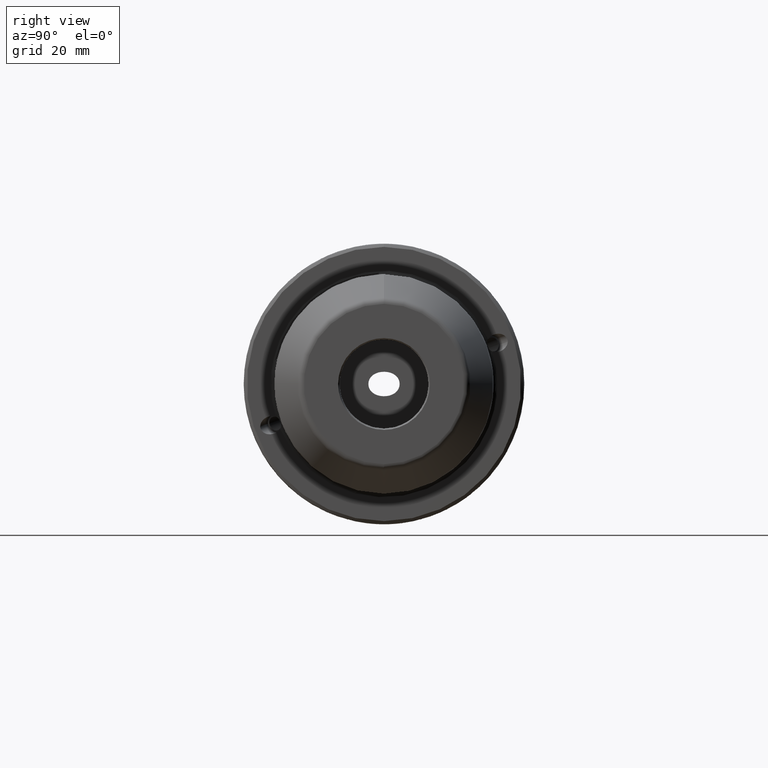
[diagram: clean part render]
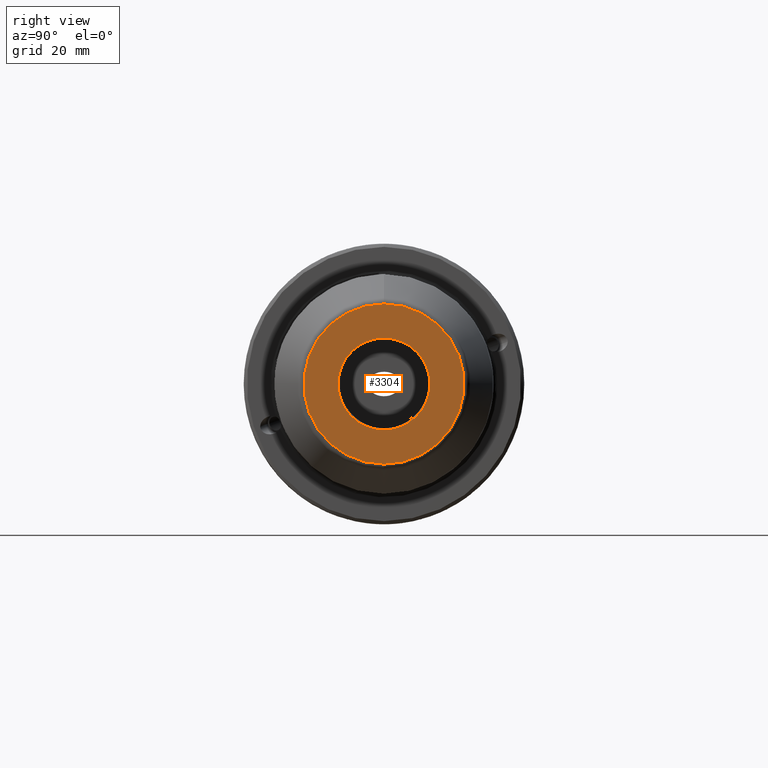
[diagram: same view with one face highlighted and labeled with its STEP entity id]
A machine part, right view. The second image highlights one B-rep face of the part: STEP entity #3304.
In plain terms, the highlighted planar face has unit normal (1, 0, 0).
Its self-contained STEP definition (entity closure, byte-faithful):
#15 = AXIS2_PLACEMENT_3D ( 'NONE', #6554, #6027, #1376 ) ;
#105 = EDGE_LOOP ( 'NONE', ( #3415, #1799 ) ) ;
#132 = EDGE_CURVE ( 'NONE', #7365, #2271, #4471, .T. ) ;
#158 = CARTESIAN_POINT ( 'NONE',  ( 137.9000000000000100, -10.13515409923963300, 1.835485800909402800 ) ) ;
#180 = CARTESIAN_POINT ( 'NONE',  ( 137.9000000000052900, 10.29999999999081000, -1.009108962495918400E-015 ) ) ;
#185 = CARTESIAN_POINT ( 'NONE',  ( 137.8999999999999500, 5.930350047342285400, -8.421965734119915200 ) ) ;
#192 = CARTESIAN_POINT ( 'NONE',  ( 137.9000000000000100, 5.561900361419710700, 8.669663316566142100 ) ) ;
#207 = CARTESIAN_POINT ( 'NONE',  ( 137.9000000000000300, -4.588065215694631300, -9.233276058712519300 ) ) ;
#223 = CARTESIAN_POINT ( 'NONE',  ( 137.9000000000000100, 10.07142262425536200, 2.160776942038703300 ) ) ;
#243 = CARTESIAN_POINT ( 'NONE',  ( 137.9000000000000100, 1.602773748666065800, 10.17507657024589400 ) ) ;
#266 = CARTESIAN_POINT ( 'NONE',  ( 137.9000000000000100, -1.893567188341029200, 10.12446391926129900 ) ) ;
#269 = CARTESIAN_POINT ( 'NONE',  ( 137.9000000000000100, 1.796716226417535100, 10.14209887348371300 ) ) ;
#290 = CARTESIAN_POINT ( 'NONE',  ( 137.8999999999999500, 1.915280730198276200, -10.12038070649420400 ) ) ;
#298 = CARTESIAN_POINT ( 'NONE',  ( 137.9000000000000100, 2.202515753932728200, 10.06731069583422500 ) ) ;
#333 = CARTESIAN_POINT ( 'NONE',  ( 137.9000000000000300, -7.890183676311975700, -6.637626310286546700 ) ) ;
#353 = EDGE_CURVE ( 'NONE', #2807, #6051, #6765, .T. ) ;
#357 = CARTESIAN_POINT ( 'NONE',  ( 137.8999999999999500, -10.12446290499677000, -1.893572667725953200 ) ) ;
#390 = CARTESIAN_POINT ( 'NONE',  ( 137.8999999999999800, -8.522836839933027900, -5.784394125260050100 ) ) ;
#394 = VERTEX_POINT ( 'NONE', #3167 ) ;
#468 = CARTESIAN_POINT ( 'NONE',  ( 137.9000000000000100, 10.13515409923963200, -1.835485800909892200 ) ) ;
#706 = ORIENTED_EDGE ( 'NONE', *, *, #6921, .T. ) ;
#708 = CARTESIAN_POINT ( 'NONE',  ( 137.8999999999999800, -9.448777943625295000, 4.114849273220979600 ) ) ;
#788 = CARTESIAN_POINT ( 'NONE',  ( 137.9000000000000100, -0.7852172857603313400, -10.27853402942987600 ) ) ;
#793 = CARTESIAN_POINT ( 'NONE',  ( 137.9000000000044100, -1.261386203119898000E-015, -10.29999999999234100 ) ) ;
#797 = CARTESIAN_POINT ( 'NONE',  ( 137.9000000000000100, -9.952856522472345100, 2.688382498085771100 ) ) ;
#799 = CARTESIAN_POINT ( 'NONE',  ( 137.9000000000000100, 9.461241460058268200, 4.072904969756430100 ) ) ;
#811 = CARTESIAN_POINT ( 'NONE',  ( 137.9000000000000100, -5.119159748813918200, -8.940837982344568500 ) ) ;
#825 = CARTESIAN_POINT ( 'NONE',  ( 137.9000000000000100, -2.017747199593999100, 10.10058268891852000 ) ) ;
#828 = CARTESIAN_POINT ( 'NONE',  ( 137.9000000000000100, 10.12446290499677200, 1.893572667726046900 ) ) ;
#835 = CARTESIAN_POINT ( 'NONE',  ( 137.9000000000044100, 6.306931015599490000E-016, 10.29999999999234100 ) ) ;
#853 = CARTESIAN_POINT ( 'NONE',  ( 137.9000000000000100, -7.785721117823425400, 6.780626028868473700 ) ) ;
#856 = CARTESIAN_POINT ( 'NONE',  ( 137.9000000000000100, 10.10058268891897100, 2.017747199591299000 ) ) ;
#877 = CARTESIAN_POINT ( 'NONE',  ( 137.9000000000000100, 3.008497033459911500, -9.860815599542398500 ) ) ;
#885 = CARTESIAN_POINT ( 'NONE',  ( 137.9000000000000100, 5.342273677337287200, 8.806717547339689000 ) ) ;
#896 = CARTESIAN_POINT ( 'NONE',  ( 137.9000000000000100, 7.785721117822092200, -6.780626028869231300 ) ) ;
#903 = CARTESIAN_POINT ( 'NONE',  ( 137.9000000000000100, 2.688382498078728800, 9.952856522473396700 ) ) ;
#1001 = CARTESIAN_POINT ( 'NONE',  ( 137.9000000000000300, -9.511503614176769300, -3.952631641639200700 ) ) ;
#1029 = FACE_BOUND ( 'NONE', #1556, .T. ) ;
#1055 = CARTESIAN_POINT ( 'NONE',  ( 137.8999999999999800, 10.27850566183633800, -0.7853706246630268700 ) ) ;
#1081 = CARTESIAN_POINT ( 'NONE',  ( 137.9000000000000300, 10.13184120711933600, -1.853700920214354400 ) ) ;
#1353 = CARTESIAN_POINT ( 'NONE',  ( 137.9000000000000100, -1.738563664867424300, -10.15234502345750300 ) ) ;
#1368 = CARTESIAN_POINT ( 'NONE',  ( 137.9000000000000300, -10.21581384219232900, 1.330906496764050900 ) ) ;
#1376 = DIRECTION ( 'NONE',  ( 0.0000000000000000000, 0.0000000000000000000, -1.000000000000000000 ) ) ;
#1387 = CARTESIAN_POINT ( 'NONE',  ( 137.9000000000000100, 6.147106187164137500, -8.268004895197801600 ) ) ;
#1396 = CARTESIAN_POINT ( 'NONE',  ( 137.8999999999999800, -9.778460172168472300, 3.243716010696471300 ) ) ;
#1422 = CARTESIAN_POINT ( 'NONE',  ( 137.9000000000000100, 5.709054343171888300, -8.573457307630793200 ) ) ;
#1429 = DIRECTION ( 'NONE',  ( 0.0000000000000000000, 0.0000000000000000000, -1.000000000000000000 ) ) ;
#1432 = CARTESIAN_POINT ( 'NONE',  ( 137.9000000000000300, 10.24268176489690400, 1.254916147654483400 ) ) ;
#1450 = CARTESIAN_POINT ( 'NONE',  ( 137.8999999999999800, -5.930350047341721400, 8.421965734120236700 ) ) ;
#1452 = CARTESIAN_POINT ( 'NONE',  ( 137.9000000000052900, 10.29999999999081000, -1.009108962495918400E-015 ) ) ;
#1467 = CARTESIAN_POINT ( 'NONE',  ( 137.9000000000000100, 1.255091487975275700, -10.24264930843200400 ) ) ;
#1480 = CARTESIAN_POINT ( 'NONE',  ( 137.9000000000000300, 6.231141247445032500, 8.232177357439832500 ) ) ;
#1509 = CARTESIAN_POINT ( 'NONE',  ( 137.8999999999999800, -2.445342375045726600, 10.00801011825108100 ) ) ;
#1512 = CARTESIAN_POINT ( 'NONE',  ( 137.8999999999999800, 5.119159748803863200, 8.940837982350085900 ) ) ;
#1538 = CARTESIAN_POINT ( 'NONE',  ( 137.9000000000000300, -5.345084926647502700, 8.811439597237287200 ) ) ;
#1556 = EDGE_LOOP ( 'NONE', ( #3442, #706, #1772, #3179 ) ) ;
#1567 = CARTESIAN_POINT ( 'NONE',  ( 137.9000000000000100, -6.780626028879497700, -7.785721117810682700 ) ) ;
#1584 = CARTESIAN_POINT ( 'NONE',  ( 137.9000000000044100, -1.261386203119898000E-015, -10.29999999999234100 ) ) ;
#1586 = VERTEX_POINT ( 'NONE', #4079 ) ;
#1600 = CARTESIAN_POINT ( 'NONE',  ( 137.9000000000000100, -9.338862144257515000, -4.350867648405890800 ) ) ;
#1675 = CARTESIAN_POINT ( 'NONE',  ( 137.9000000000000100, 9.952856522470934700, -2.688382498085976300 ) ) ;
#1772 = ORIENTED_EDGE ( 'NONE', *, *, #353, .T. ) ;
#1799 = ORIENTED_EDGE ( 'NONE', *, *, #2814, .T. ) ;
#1891 = CARTESIAN_POINT ( 'NONE',  ( 137.9000000000000100, -10.14209497927165100, 1.796737276288265200 ) ) ;
#1910 = CARTESIAN_POINT ( 'NONE',  ( 137.9000000000000100, -10.15233837480276900, 1.738599603671109800 ) ) ;
#1951 = CARTESIAN_POINT ( 'NONE',  ( 137.9000000000000100, -1.796716226417533600, -10.14209887348371100 ) ) ;
#1967 = CARTESIAN_POINT ( 'NONE',  ( 137.9000000000000300, 8.811439597240200400, 5.345084926644124000 ) ) ;
#1993 = CARTESIAN_POINT ( 'NONE',  ( 137.9000000000000300, 10.11253424770242200, 1.956288661553510400 ) ) ;
#2007 = CARTESIAN_POINT ( 'NONE',  ( 137.9000000000000100, 2.017747199594049200, -10.10058268891849800 ) ) ;
#2031 = CARTESIAN_POINT ( 'NONE',  ( 137.8999999999999800, 9.233276058720807800, -4.588065215677771900 ) ) ;
#2066 = CARTESIAN_POINT ( 'NONE',  ( 137.9000000000000300, 2.160776942043834700, -10.07142262425448300 ) ) ;
#2076 = CARTESIAN_POINT ( 'NONE',  ( 137.9000000000000100, 8.573457307630088000, 5.709054343172680600 ) ) ;
#2095 = CARTESIAN_POINT ( 'NONE',  ( 137.9000000000000100, -1.255091487975018600, 10.24264930843200200 ) ) ;
#2130 = CARTESIAN_POINT ( 'NONE',  ( 137.9000000000000300, -10.24268176489690400, -1.254916147657540600 ) ) ;
#2271 = VERTEX_POINT ( 'NONE', #835 ) ;
#2272 = CARTESIAN_POINT ( 'NONE',  ( 137.9000000000000100, 9.681045376670338600, -3.518505011444456700 ) ) ;
#2455 = CARTESIAN_POINT ( 'NONE',  ( 137.8999999999999500, -9.637106902812242000, 3.635655064145436800 ) ) ;
#2520 = CARTESIAN_POINT ( 'NONE',  ( 137.8999999999999800, -1.330791492592262400, -10.21583511788748000 ) ) ;
#2548 = CARTESIAN_POINT ( 'NONE',  ( 137.9000000000000100, -1.853700920214279800, -10.13184120711930600 ) ) ;
#2560 = CARTESIAN_POINT ( 'NONE',  ( 137.8999999999999800, 8.522836839934139900, 5.784394125258809400 ) ) ;
#2570 = CARTESIAN_POINT ( 'NONE',  ( 137.9000000000000100, -3.750941287895512000, -9.592824695607793800 ) ) ;
#2579 = CARTESIAN_POINT ( 'NONE',  ( 137.9000000000000100, -6.147106187163256400, 8.268004895198299000 ) ) ;
#2581 = CARTESIAN_POINT ( 'NONE',  ( 137.8999999999999800, 3.635655064143582700, 9.637106902812526200 ) ) ;
#2596 = CARTESIAN_POINT ( 'NONE',  ( 137.9000000000044100, -1.261386203119898000E-015, -10.29999999999234100 ) ) ;
#2608 = CARTESIAN_POINT ( 'NONE',  ( 137.9000000000000300, -3.480956099088823800, 9.699729714875029900 ) ) ;
#2610 = CARTESIAN_POINT ( 'NONE',  ( 137.9000000000000100, 10.30000000000000200, 0.6301763343727880800 ) ) ;
#2640 = CARTESIAN_POINT ( 'NONE',  ( 137.9000000000000100, 5.490016737641031600, 8.715350628254547900 ) ) ;
#2649 = CARTESIAN_POINT ( 'NONE',  ( 137.9000000000000100, -10.11253424770213600, -1.956288661554652200 ) ) ;
#2653 = CARTESIAN_POINT ( 'NONE',  ( 137.9000000000000100, 5.784394125257383800, -8.522836839935434800 ) ) ;
#2659 = CARTESIAN_POINT ( 'NONE',  ( 137.8999999999999800, -4.896092657810443800, 9.073699687925035600 ) ) ;
#2661 = CARTESIAN_POINT ( 'NONE',  ( 137.9000000000000100, 1.738563664867425000, 10.15234502345750100 ) ) ;
#2674 = CARTESIAN_POINT ( 'NONE',  ( 137.9000000000000300, 4.072904969758857500, -9.461241460056111700 ) ) ;
#2683 = CARTESIAN_POINT ( 'NONE',  ( 137.9000000000000100, -2.160776942043741900, 10.07142262425451700 ) ) ;
#2704 = CARTESIAN_POINT ( 'NONE',  ( 137.9000000000000300, -10.00801011825098100, -2.445342375043315600 ) ) ;
#2747 = CARTESIAN_POINT ( 'NONE',  ( 137.9000000000000100, -8.811439597237392000, -5.345084926649359900 ) ) ;
#2807 = VERTEX_POINT ( 'NONE', #180 ) ;
#2814 = EDGE_CURVE ( 'NONE', #394, #1586, #4231, .T. ) ;
#2861 = CARTESIAN_POINT ( 'NONE',  ( 137.9000000000000300, 9.637106902811874300, -3.635655064145491400 ) ) ;
#3000 = B_SPLINE_CURVE_WITH_KNOTS ( 'NONE', 3,
 ( #3784, #3816, #6040, #3149, #243, #2661, #269, #4953, #6669, #298, #903, #5549, #3222, #2581, #3737, #6645, #3758, #4910, #1512, #885, #2640, #192, #1480, #4984, #5570, #7336, #4382, #5016, #2560, #2076, #1967, #6129, #4319, #799, #6154, #6694, #4931, #3176, #5488, #3255, #223, #856, #1993, #4352, #828, #1432, #2610, #1452 ),
 .UNSPECIFIED., .F., .F.,
 ( 4, 1, 1, 1, 1, 2, 2, 1, 1, 1, 2, 2, 1, 1, 2, 2, 2, 1, 1, 2, 2, 1, 1, 1, 2, 2, 1, 1, 1, 1, 2, 2, 4 ),
 ( 0.5000000000000000000, 0.5312499999999995600, 0.5468749999999993300, 0.5546874999999992200, 0.5585937499999991100, 0.5605468749999991100, 0.5624999999999991100, 0.5937499999999986700, 0.6093749999999984500, 0.6171874999999983300, 0.6210937499999982200, 0.6249999999999982200, 0.6562499999999980000, 0.6718749999999980000, 0.6796874999999980000, 0.6874999999999978900, 0.7499999999999977800, 0.7812499999999975600, 0.7968749999999975600, 0.8046874999999975600, 0.8124999999999975600, 0.8437499999999973400, 0.8593749999999973400, 0.8671874999999974500, 0.8710937499999975600, 0.8749999999999975600, 0.9062499999999978900, 0.9218749999999980000, 0.9296874999999981100, 0.9335937499999981100, 0.9355468749999982200, 0.9374999999999982200, 1.000000000000000000 ),
 .UNSPECIFIED. ) ;
#3149 = CARTESIAN_POINT ( 'NONE',  ( 137.9000000000000100, 1.330791492592264100, 10.21583511788748100 ) ) ;
#3164 = EDGE_CURVE ( 'NONE', #1586, #394, #6250, .T. ) ;
#3167 = CARTESIAN_POINT ( 'NONE',  ( 137.9000000000000100, 2.288084169435077700E-015, 17.98823722472562600 ) ) ;
#3176 = CARTESIAN_POINT ( 'NONE',  ( 137.9000000000000300, 9.699729714876131200, 3.480956099082244100 ) ) ;
#3179 = ORIENTED_EDGE ( 'NONE', *, *, #3481, .T. ) ;
#3189 = CARTESIAN_POINT ( 'NONE',  ( 137.9000000000000100, -0.3148227747312540800, -10.30001621005345100 ) ) ;
#3194 = CARTESIAN_POINT ( 'NONE',  ( 137.9000000000000100, 3.830177934662083700, -9.561455724201543700 ) ) ;
#3213 = CARTESIAN_POINT ( 'NONE',  ( 137.8999999999999800, 4.896092657810077900, -9.073699687925183000 ) ) ;
#3219 = PLANE ( 'NONE',  #4990 ) ;
#3220 = CARTESIAN_POINT ( 'NONE',  ( 137.8999999999999800, -8.806717547336436500, 5.342273677343303700 ) ) ;
#3222 = CARTESIAN_POINT ( 'NONE',  ( 137.9000000000000100, 3.518505011441285000, 9.681045376671413300 ) ) ;
#3234 = CARTESIAN_POINT ( 'NONE',  ( 137.9000000000000100, -9.461241460056120500, -4.072904969760442900 ) ) ;
#3252 = CARTESIAN_POINT ( 'NONE',  ( 137.8999999999999800, -4.350867648403451900, 9.338862144257380000 ) ) ;
#3255 = CARTESIAN_POINT ( 'NONE',  ( 137.8999999999999800, 10.00801011825252100, 2.445342375037089100 ) ) ;
#3286 = CARTESIAN_POINT ( 'NONE',  ( 137.9000000000000300, -5.490016737644618900, -8.715350628252579700 ) ) ;
#3304 = ADVANCED_FACE ( 'NONE', ( #4150, #1029 ), #3219, .T. ) ;
#3308 = CARTESIAN_POINT ( 'NONE',  ( 137.9000000000000300, -9.699729714874957100, -3.480956099086986100 ) ) ;
#3338 = CARTESIAN_POINT ( 'NONE',  ( 137.8999999999999800, -5.342273677343749600, -8.806717547336141600 ) ) ;
#3415 = ORIENTED_EDGE ( 'NONE', *, *, #3164, .T. ) ;
#3418 = CARTESIAN_POINT ( 'NONE',  ( 137.9000000000000600, 10.21581384219233100, -1.330906496769284500 ) ) ;
#3442 = ORIENTED_EDGE ( 'NONE', *, *, #132, .T. ) ;
#3446 = CARTESIAN_POINT ( 'NONE',  ( 137.9000000000000600, 9.607328081175506200, -3.713618063300588600 ) ) ;
#3481 = EDGE_CURVE ( 'NONE', #6051, #7365, #4052, .T. ) ;
#3566 = AXIS2_PLACEMENT_3D ( 'NONE', #3645, #4821, #6634 ) ;
#3645 = CARTESIAN_POINT ( 'NONE',  ( 137.9000000000000100, 0.0000000000000000000, 0.0000000000000000000 ) ) ;
#3653 = CARTESIAN_POINT ( 'NONE',  ( 137.8999999999999800, -10.27850566183633600, 0.7853706246560465700 ) ) ;
#3729 = CARTESIAN_POINT ( 'NONE',  ( 137.9000000000000100, 8.806717547340142000, -5.342273677335621900 ) ) ;
#3735 = CARTESIAN_POINT ( 'NONE',  ( 137.8999999999999800, -10.30000000000000200, 0.3149103969573774400 ) ) ;
#3737 = CARTESIAN_POINT ( 'NONE',  ( 137.9000000000000100, 3.713618063299584100, 9.607328081175840100 ) ) ;
#3746 = CARTESIAN_POINT ( 'NONE',  ( 137.8999999999999500, -3.518505011445362700, -9.681045376670654800 ) ) ;
#3755 = DIRECTION ( 'NONE',  ( 1.000000000000000000, 0.0000000000000000000, 0.0000000000000000000 ) ) ;
#3758 = CARTESIAN_POINT ( 'NONE',  ( 137.9000000000000300, 4.114849273213846600, 9.448777943629147900 ) ) ;
#3773 = CARTESIAN_POINT ( 'NONE',  ( 137.9000000000000300, 7.031939210421115600, -7.534486754897546500 ) ) ;
#3782 = CARTESIAN_POINT ( 'NONE',  ( 137.9000000000000100, -1.915280730198260200, 10.12038070649421000 ) ) ;
#3784 = CARTESIAN_POINT ( 'NONE',  ( 137.9000000000044100, 6.306931015599490000E-016, 10.29999999999234100 ) ) ;
#3814 = CARTESIAN_POINT ( 'NONE',  ( 137.9000000000000300, -3.872194652703564900, 9.544525911573002100 ) ) ;
#3816 = CARTESIAN_POINT ( 'NONE',  ( 137.9000000000000300, 0.3148227747312544700, 10.30001621005345000 ) ) ;
#3862 = CARTESIAN_POINT ( 'NONE',  ( 137.9000000000000300, -8.940837982345026800, 5.119159748813222800 ) ) ;
#3876 = CARTESIAN_POINT ( 'NONE',  ( 137.8999999999999500, -8.268004895191062100, -6.147106187171620400 ) ) ;
#3906 = CARTESIAN_POINT ( 'NONE',  ( 137.9000000000000300, -6.231141247448137600, -8.232177357436155400 ) ) ;
#3930 = CARTESIAN_POINT ( 'NONE',  ( 137.8999999999999500, -9.073699687925218500, -4.896092657813695400 ) ) ;
#4014 = CARTESIAN_POINT ( 'NONE',  ( 137.9000000000000300, 10.14209497927165100, -1.796737276289222000 ) ) ;
#4052 = B_SPLINE_CURVE_WITH_KNOTS ( 'NONE', 3,
 ( #2596, #3189, #788, #2520, #6709, #1353, #1951, #7245, #2548, #4305, #4892, #4336, #3746, #5474, #6055, #2570, #6656, #207, #811, #3338, #3286, #7377, #3906, #1567, #5071, #333, #3876, #4513, #390, #6742, #2747, #3930, #1600, #3234, #1001, #7422, #5632, #3308, #5678, #2704, #6138, #4472, #2649, #5043, #357, #2130, #4492, #5656 ),
 .UNSPECIFIED., .F., .F.,
 ( 4, 1, 1, 1, 1, 2, 2, 1, 1, 1, 2, 2, 1, 1, 2, 2, 2, 1, 1, 2, 2, 1, 1, 1, 2, 2, 1, 1, 1, 1, 2, 2, 4 ),
 ( 0.5000000000000000000, 0.5312499999999998900, 0.5468749999999997800, 0.5546874999999997800, 0.5585937499999997800, 0.5605468749999997800, 0.5624999999999997800, 0.5937499999999998900, 0.6093750000000000000, 0.6171875000000001100, 0.6210937500000001100, 0.6250000000000001100, 0.6562500000000000000, 0.6718750000000000000, 0.6796875000000000000, 0.6875000000000000000, 0.7500000000000002200, 0.7812500000000003300, 0.7968750000000002200, 0.8046875000000003300, 0.8125000000000003300, 0.8437500000000004400, 0.8593750000000004400, 0.8671875000000004400, 0.8710937500000004400, 0.8750000000000004400, 0.9062500000000002200, 0.9218750000000001100, 0.9296875000000000000, 0.9335937500000000000, 0.9355468750000000000, 0.9375000000000000000, 1.000000000000000000 ),
 .UNSPECIFIED. ) ;
#4079 = CARTESIAN_POINT ( 'NONE',  ( 137.9000000000000100, 0.0000000000000000000, -17.98823722472562600 ) ) ;
#4150 = FACE_OUTER_BOUND ( 'NONE', #105, .T. ) ;
#4211 = CARTESIAN_POINT ( 'NONE',  ( 137.9000000000000300, -9.607328081175698000, 3.713618063300558900 ) ) ;
#4231 = CIRCLE ( 'NONE', #3566, 17.98823722472562600 ) ;
#4292 = CARTESIAN_POINT ( 'NONE',  ( 137.9000000000000100, -10.13184120711928300, 1.853700920214363700 ) ) ;
#4305 = CARTESIAN_POINT ( 'NONE',  ( 137.9000000000000100, -2.202515753938051100, -10.06731069583323700 ) ) ;
#4311 = CARTESIAN_POINT ( 'NONE',  ( 137.9000000000000300, 1.893567188341022600, -10.12446391926130000 ) ) ;
#4319 = CARTESIAN_POINT ( 'NONE',  ( 137.9000000000000300, 9.338862144261199200, 4.350867648399017200 ) ) ;
#4336 = CARTESIAN_POINT ( 'NONE',  ( 137.8999999999999800, -3.243716010698178400, -9.778460172167974900 ) ) ;
#4349 = CARTESIAN_POINT ( 'NONE',  ( 137.8999999999999800, -6.637626310275396500, 7.890183676321618700 ) ) ;
#4352 = CARTESIAN_POINT ( 'NONE',  ( 137.9000000000000100, 10.12038070649434800, 1.915280730197450600 ) ) ;
#4373 = CARTESIAN_POINT ( 'NONE',  ( 137.9000000000000100, 6.637626310276557400, -7.890183676320956100 ) ) ;
#4382 = CARTESIAN_POINT ( 'NONE',  ( 137.8999999999999800, 8.268004895194177800, 6.147106187168130700 ) ) ;
#4393 = CARTESIAN_POINT ( 'NONE',  ( 137.9000000000000300, 3.952631641638249400, -9.511503614176756800 ) ) ;
#4398 = CARTESIAN_POINT ( 'NONE',  ( 137.9000000000000600, -1.956288661555092100, 10.11253424770215900 ) ) ;
#4416 = CARTESIAN_POINT ( 'NONE',  ( 137.8999999999999500, 8.940837982350789300, -5.119159748801274100 ) ) ;
#4471 = B_SPLINE_CURVE_WITH_KNOTS ( 'NONE', 3,
 ( #7233, #3735, #3653, #1368, #7208, #1910, #1891, #158, #4292, #6038, #797, #1396, #5968, #2455, #4211, #6564, #708, #5406, #3862, #3220, #6728, #7314, #6100, #853, #5568, #4349, #2579, #1450, #4929, #7294, #1538, #2659, #3252, #6667, #6068, #3814, #6756, #2608, #5592, #1509, #2683, #825, #4398, #3782, #266, #2095, #7260, #6692 ),
 .UNSPECIFIED., .F., .F.,
 ( 4, 1, 1, 1, 1, 2, 2, 1, 1, 1, 2, 2, 1, 1, 2, 2, 2, 1, 1, 2, 2, 1, 1, 1, 2, 2, 1, 1, 1, 1, 2, 2, 4 ),
 ( 0.0000000000000000000, 0.03125000000000005600, 0.04687500000000006900, 0.05468750000000007600, 0.05859375000000005600, 0.06054687500000004200, 0.06250000000000002800, 0.09374999999999994400, 0.1093749999999998600, 0.1171874999999997800, 0.1210937499999997500, 0.1249999999999997400, 0.1562499999999993900, 0.1718749999999992200, 0.1796874999999991700, 0.1874999999999991400, 0.2499999999999987000, 0.2812499999999983900, 0.2968749999999982200, 0.3046874999999982200, 0.3124999999999981100, 0.3437499999999981700, 0.3593749999999981700, 0.3671874999999982200, 0.3710937499999982200, 0.3749999999999982200, 0.4062499999999988900, 0.4218749999999991700, 0.4296874999999993300, 0.4335937499999993900, 0.4355468749999994400, 0.4374999999999994400, 0.5000000000000000000 ),
 .UNSPECIFIED. ) ;
#4472 = CARTESIAN_POINT ( 'NONE',  ( 137.9000000000000600, -10.10058268891849100, -2.017747199593248100 ) ) ;
#4492 = CARTESIAN_POINT ( 'NONE',  ( 137.9000000000000300, -10.30000000000000400, -0.6301763343758385300 ) ) ;
#4513 = CARTESIAN_POINT ( 'NONE',  ( 137.9000000000000600, -8.421965734115589800, -5.930350047347099400 ) ) ;
#4821 = DIRECTION ( 'NONE',  ( 1.000000000000000000, 0.0000000000000000000, 0.0000000000000000000 ) ) ;
#4892 = CARTESIAN_POINT ( 'NONE',  ( 137.9000000000000300, -2.688382498088049700, -9.952856522471671900 ) ) ;
#4898 = CARTESIAN_POINT ( 'NONE',  ( 137.9000000000000100, 0.6296455494625083900, -10.29996757989310300 ) ) ;
#4910 = CARTESIAN_POINT ( 'NONE',  ( 137.8999999999999500, 4.588065215681221600, 9.233276058719866300 ) ) ;
#4924 = CARTESIAN_POINT ( 'NONE',  ( 137.8999999999999800, 9.448777943629686100, -4.114849273211874900 ) ) ;
#4929 = CARTESIAN_POINT ( 'NONE',  ( 137.9000000000000100, -5.784394125257064100, 8.522836839935614300 ) ) ;
#4931 = CARTESIAN_POINT ( 'NONE',  ( 137.8999999999999800, 9.561455724201396200, 3.830177934662920800 ) ) ;
#4953 = CARTESIAN_POINT ( 'NONE',  ( 137.8999999999999800, 1.835475019268296900, 10.13515609383605400 ) ) ;
#4984 = CARTESIAN_POINT ( 'NONE',  ( 137.9000000000000100, 6.780626028874750400, 7.785721117816002000 ) ) ;
#4990 = AXIS2_PLACEMENT_3D ( 'NONE', #7259, #3755, #1429 ) ;
#5016 = CARTESIAN_POINT ( 'NONE',  ( 137.8999999999999800, 8.421965734117588200, 5.930350047344857600 ) ) ;
#5043 = CARTESIAN_POINT ( 'NONE',  ( 137.9000000000000100, -10.12038070649420400, -1.915280730198036800 ) ) ;
#5071 = CARTESIAN_POINT ( 'NONE',  ( 137.9000000000000100, -7.534486754892409300, -7.031939210426818600 ) ) ;
#5177 = CARTESIAN_POINT ( 'NONE',  ( 137.9000000000000300, 10.06731069583282200, -2.202515753936867600 ) ) ;
#5406 = CARTESIAN_POINT ( 'NONE',  ( 137.9000000000000300, -9.233276058713128600, 4.588065215693707600 ) ) ;
#5474 = CARTESIAN_POINT ( 'NONE',  ( 137.9000000000000100, -3.635655064146037700, -9.637106902812067900 ) ) ;
#5480 = CARTESIAN_POINT ( 'NONE',  ( 137.9000000000000100, 3.480956099088946300, -9.699729714874981900 ) ) ;
#5488 = CARTESIAN_POINT ( 'NONE',  ( 137.9000000000000100, 9.860815599544414700, 3.008497033448184000 ) ) ;
#5504 = CARTESIAN_POINT ( 'NONE',  ( 137.9000000000000100, 4.350867648403176500, -9.338862144257488400 ) ) ;
#5549 = CARTESIAN_POINT ( 'NONE',  ( 137.9000000000000300, 3.243716010691191100, 9.778460172169271700 ) ) ;
#5565 = CARTESIAN_POINT ( 'NONE',  ( 137.9000000000000300, 8.669663316565730000, -5.561900361420059700 ) ) ;
#5568 = CARTESIAN_POINT ( 'NONE',  ( 137.9000000000000300, -7.031939210420449400, 7.534486754897924000 ) ) ;
#5570 = CARTESIAN_POINT ( 'NONE',  ( 137.9000000000000300, 7.534486754894786900, 7.031939210424160300 ) ) ;
#5592 = CARTESIAN_POINT ( 'NONE',  ( 137.8999999999999800, -3.008497033459701000, 9.860815599542482000 ) ) ;
#5632 = CARTESIAN_POINT ( 'NONE',  ( 137.9000000000000100, -9.561455724201545400, -3.830177934662328400 ) ) ;
#5656 = CARTESIAN_POINT ( 'NONE',  ( 137.9000000000052900, -10.29999999999081000, 7.568317218719387300E-016 ) ) ;
#5678 = CARTESIAN_POINT ( 'NONE',  ( 137.8999999999999800, -9.860815599542350500, -3.008497033456484900 ) ) ;
#5765 = CARTESIAN_POINT ( 'NONE',  ( 137.9000000000000100, 9.778460172167424200, -3.243716010696626700 ) ) ;
#5968 = CARTESIAN_POINT ( 'NONE',  ( 137.9000000000000100, -9.681045376670953200, 3.518505011444365700 ) ) ;
#6027 = DIRECTION ( 'NONE',  ( 1.000000000000000000, 0.0000000000000000000, 0.0000000000000000000 ) ) ;
#6031 = CARTESIAN_POINT ( 'NONE',  ( 137.9000000000052900, -10.29999999999081000, 7.568317218719387300E-016 ) ) ;
#6038 = CARTESIAN_POINT ( 'NONE',  ( 137.9000000000000300, -10.06731069583362300, 2.202515753936752100 ) ) ;
#6040 = CARTESIAN_POINT ( 'NONE',  ( 137.9000000000000100, 0.7852172857603319000, 10.27853402942987800 ) ) ;
#6051 = VERTEX_POINT ( 'NONE', #1584 ) ;
#6055 = CARTESIAN_POINT ( 'NONE',  ( 137.9000000000000100, -3.713618063300873300, -9.607328081175603900 ) ) ;
#6068 = CARTESIAN_POINT ( 'NONE',  ( 137.9000000000000300, -3.952631641638346700, 9.511503614176723100 ) ) ;
#6100 = CARTESIAN_POINT ( 'NONE',  ( 137.8999999999999800, -8.232177357432911800, 6.231141247453100700 ) ) ;
#6118 = CARTESIAN_POINT ( 'NONE',  ( 137.9000000000000300, 3.872194652703516900, -9.544525911573023400 ) ) ;
#6129 = CARTESIAN_POINT ( 'NONE',  ( 137.9000000000000300, 9.073699687930128400, 4.896092657804531200 ) ) ;
#6138 = CARTESIAN_POINT ( 'NONE',  ( 137.9000000000000100, -10.07142262425446200, -2.160776942042334600 ) ) ;
#6143 = CARTESIAN_POINT ( 'NONE',  ( 137.9000000000000100, 2.445342375045885600, -10.00801011825101800 ) ) ;
#6154 = CARTESIAN_POINT ( 'NONE',  ( 137.9000000000000100, 9.511503614178058900, 3.952631641636787000 ) ) ;
#6179 = CARTESIAN_POINT ( 'NONE',  ( 137.9000000000000100, 8.715350628254803700, -5.490016737640105200 ) ) ;
#6250 = CIRCLE ( 'NONE', #15, 17.98823722472562600 ) ;
#6554 = CARTESIAN_POINT ( 'NONE',  ( 137.9000000000000100, 0.0000000000000000000, 0.0000000000000000000 ) ) ;
#6564 = CARTESIAN_POINT ( 'NONE',  ( 137.9000000000000300, -9.592824695607753000, 3.750941287895579500 ) ) ;
#6634 = DIRECTION ( 'NONE',  ( 0.0000000000000000000, 0.0000000000000000000, -1.000000000000000000 ) ) ;
#6645 = CARTESIAN_POINT ( 'NONE',  ( 137.9000000000000300, 3.750941287896471600, 9.592824695607269800 ) ) ;
#6656 = CARTESIAN_POINT ( 'NONE',  ( 137.9000000000000900, -4.114849273221510700, -9.448777943624946800 ) ) ;
#6661 = CARTESIAN_POINT ( 'NONE',  ( 137.9000000000000300, 8.232177357443191600, -6.231141247442247200 ) ) ;
#6667 = CARTESIAN_POINT ( 'NONE',  ( 137.8999999999999800, -4.072904969759017400, 9.461241460056042400 ) ) ;
#6669 = CARTESIAN_POINT ( 'NONE',  ( 137.9000000000000100, 1.853700920214614000, 10.13184120711924600 ) ) ;
#6692 = CARTESIAN_POINT ( 'NONE',  ( 137.9000000000044100, 6.306931015599490000E-016, 10.29999999999234100 ) ) ;
#6694 = CARTESIAN_POINT ( 'NONE',  ( 137.9000000000000300, 9.544525911573705600, 3.872194652702747300 ) ) ;
#6709 = CARTESIAN_POINT ( 'NONE',  ( 137.9000000000000100, -1.602773748666064500, -10.17507657024589700 ) ) ;
#6718 = CARTESIAN_POINT ( 'NONE',  ( 137.9000000000000300, 5.345084926647293100, -8.811439597237372500 ) ) ;
#6728 = CARTESIAN_POINT ( 'NONE',  ( 137.9000000000000300, -8.715350628252744900, 5.490016737644373800 ) ) ;
#6742 = CARTESIAN_POINT ( 'NONE',  ( 137.9000000000000100, -8.573457307630786100, -5.709054343171369600 ) ) ;
#6756 = CARTESIAN_POINT ( 'NONE',  ( 137.9000000000000300, -3.830177934662097400, 9.561455724201534800 ) ) ;
#6765 = B_SPLINE_CURVE_WITH_KNOTS ( 'NONE', 3,
 ( #6931, #6903, #1055, #3418, #6954, #7503, #4014, #468, #1081, #5177, #1675, #5765, #2272, #2861, #3446, #7527, #4924, #2031, #4416, #3729, #6179, #5565, #6661, #896, #3773, #4373, #1387, #185, #2653, #1422, #6718, #3213, #5504, #2674, #4393, #6118, #3194, #5480, #877, #6143, #2066, #2007, #7227, #290, #4311, #1467, #4898, #793 ),
 .UNSPECIFIED., .F., .F.,
 ( 4, 1, 1, 1, 1, 2, 2, 1, 1, 1, 2, 2, 1, 1, 2, 2, 2, 1, 1, 2, 2, 1, 1, 1, 2, 2, 1, 1, 1, 1, 2, 2, 4 ),
 ( 0.0000000000000000000, 0.03125000000000089500, 0.04687500000000134600, 0.05468750000000156800, 0.05859375000000165800, 0.06054687500000170000, 0.06250000000000173500, 0.09375000000000202600, 0.1093750000000022100, 0.1171875000000023000, 0.1210937500000023300, 0.1250000000000023600, 0.1562500000000021400, 0.1718750000000020500, 0.1796875000000020500, 0.1875000000000020500, 0.2500000000000013900, 0.2812500000000010500, 0.2968750000000008900, 0.3046875000000008900, 0.3125000000000008900, 0.3437500000000006100, 0.3593750000000005600, 0.3671875000000005000, 0.3710937500000005000, 0.3750000000000004400, 0.4062500000000002800, 0.4218750000000002200, 0.4296875000000001700, 0.4335937500000001700, 0.4355468750000001700, 0.4375000000000001700, 0.5000000000000000000 ),
 .UNSPECIFIED. ) ;
#6903 = CARTESIAN_POINT ( 'NONE',  ( 137.8999999999999800, 10.30000000000000100, -0.3149103969613660200 ) ) ;
#6921 = EDGE_CURVE ( 'NONE', #2271, #2807, #3000, .T. ) ;
#6931 = CARTESIAN_POINT ( 'NONE',  ( 137.9000000000052900, 10.29999999999081000, -1.009108962495918400E-015 ) ) ;
#6954 = CARTESIAN_POINT ( 'NONE',  ( 137.9000000000000100, 10.17506415942371900, -1.602840834435994300 ) ) ;
#7208 = CARTESIAN_POINT ( 'NONE',  ( 137.8999999999999500, -10.17506415942372100, 1.602840834432941700 ) ) ;
#7227 = CARTESIAN_POINT ( 'NONE',  ( 137.9000000000000300, 1.956288661555121400, -10.11253424770214700 ) ) ;
#7233 = CARTESIAN_POINT ( 'NONE',  ( 137.9000000000052900, -10.29999999999081000, 7.568317218719387300E-016 ) ) ;
#7245 = CARTESIAN_POINT ( 'NONE',  ( 137.9000000000000100, -1.835475019268294900, -10.13515609383605600 ) ) ;
#7259 = CARTESIAN_POINT ( 'NONE',  ( 137.9000000000000100, 0.0000000000000000000, 0.0000000000000000000 ) ) ;
#7260 = CARTESIAN_POINT ( 'NONE',  ( 137.8999999999999500, -0.6296455494625059500, 10.29996757989309900 ) ) ;
#7294 = CARTESIAN_POINT ( 'NONE',  ( 137.9000000000000100, -5.709054343171830600, 8.573457307630816300 ) ) ;
#7314 = CARTESIAN_POINT ( 'NONE',  ( 137.9000000000000300, -8.669663316567008900, 5.561900361418699900 ) ) ;
#7336 = CARTESIAN_POINT ( 'NONE',  ( 137.8999999999999500, 7.890183676316125300, 6.637626310281887300 ) ) ;
#7365 = VERTEX_POINT ( 'NONE', #6031 ) ;
#7377 = CARTESIAN_POINT ( 'NONE',  ( 137.9000000000000100, -5.561900361419318100, -8.669663316566603900 ) ) ;
#7422 = CARTESIAN_POINT ( 'NONE',  ( 137.9000000000000600, -9.544525911573028800, -3.872194652704017000 ) ) ;
#7503 = CARTESIAN_POINT ( 'NONE',  ( 137.9000000000000100, 10.15233837480276700, -1.738599603672744000 ) ) ;
#7527 = CARTESIAN_POINT ( 'NONE',  ( 137.9000000000000900, 9.592824695607207600, -3.750941287896717700 ) ) ;